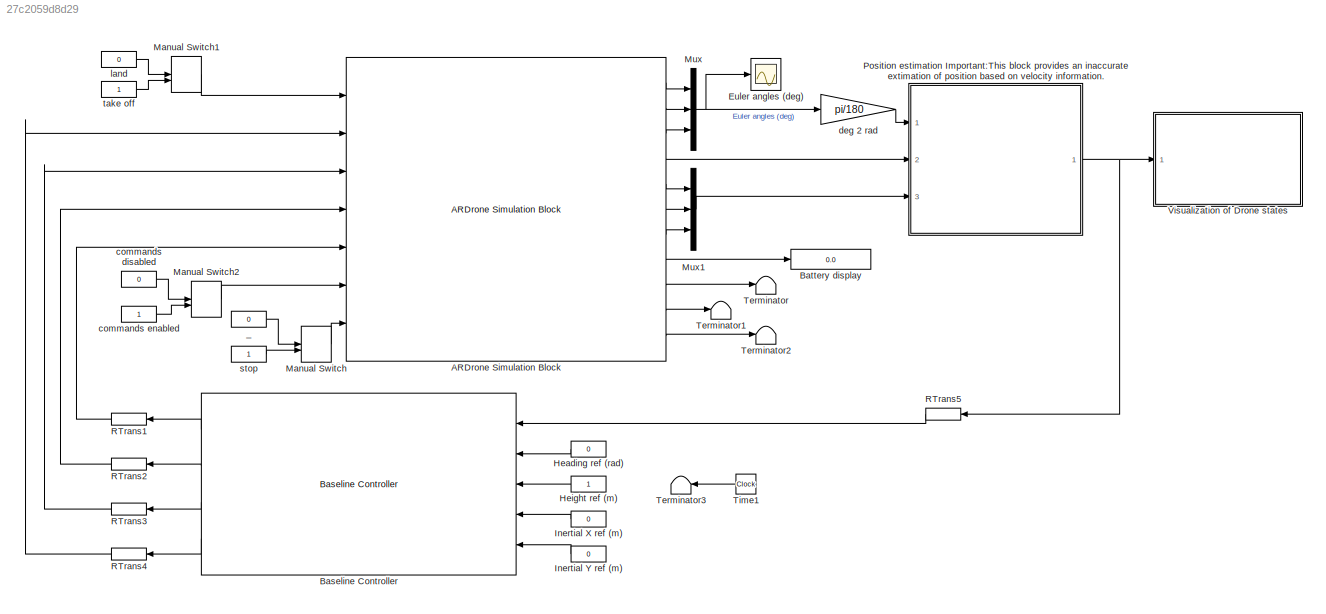
MODEL slx_27c2059d8d29
KIND model
CONFIG AbsTol = auto
CONFIG EnableMultiTasking = on
CONFIG FixedStep = simDT
CONFIG MaxStep = auto
CONFIG MinStep = auto
CONFIG RelTol = 1e-3
CONFIG SampleTimeConstraint = Unconstrained
CONFIG Solver = ode1
CONFIG SolverName = ode1
CONFIG StartTime = 0.0
CONFIG StopTime = 100
BLOCK [Reference] ARDrone Simulation Block  REF=ARBlocks/ARDrone Simulation Block
  Ports = [7, 11]
  SourceBlock = ARBlocks/ARDrone Simulation Block
  SourceType = SubSystem
BLOCK [Reference] Baseline Controller  REF=ARBlocks/Baseline Controller
  Ports = [5, 4]
  SourceBlock = ARBlocks/Baseline Controller
  SourceType = SubSystem
BLOCK [Display] Battery display
  Decimation = 1
  Ports = [1]
BLOCK [Scope] Euler angles (deg)
  Floating = off
  NumInputPorts = 1
  Ports = [1]
  ScopeSpecificationString = Simulink.scopes.TimeScopeBlockCfg('CurrentConfiguration', extmgr.ConfigurationSet(extmgr.Configuration('Core','General UI',true),extmgr.Configuration('Core','Source UI',true),extmgr.Configuration('Sources','WiredSimulink',true,'DataLoggingSaveFormat','StructureWithTime','DataLoggingMaxPoints','500000','DataLoggingLimitDataPoints',true,'DataLoggingDecimation','1','DataLoggingDecimateData',true),ext...<+1675ch>
BLOCK [Constant] Heading ref (rad)
  NameLocation = top
  SampleTime = FMS.Ts
  Value = 0
BLOCK [Constant] Height ref (m)
  NameLocation = top
  SampleTime = FMS.Ts
BLOCK [Constant] Inertial X ref (m)
  NameLocation = top
  SampleTime = FMS.Ts
  Value = 0
BLOCK [Constant] Inertial Y ref (m)
  NameLocation = top
  SampleTime = FMS.Ts
  Value = 0
BLOCK [ManualSwitch] Manual Switch
BLOCK [ManualSwitch] Manual Switch1
BLOCK [ManualSwitch] Manual Switch2
  NameLocation = top
BLOCK [Mux] Mux
  DisplayOption = bar
  Inputs = 3
  Ports = [3, 1]
BLOCK [Mux] Mux1
  DisplayOption = bar
  Inputs = 3
  Ports = [3, 1]
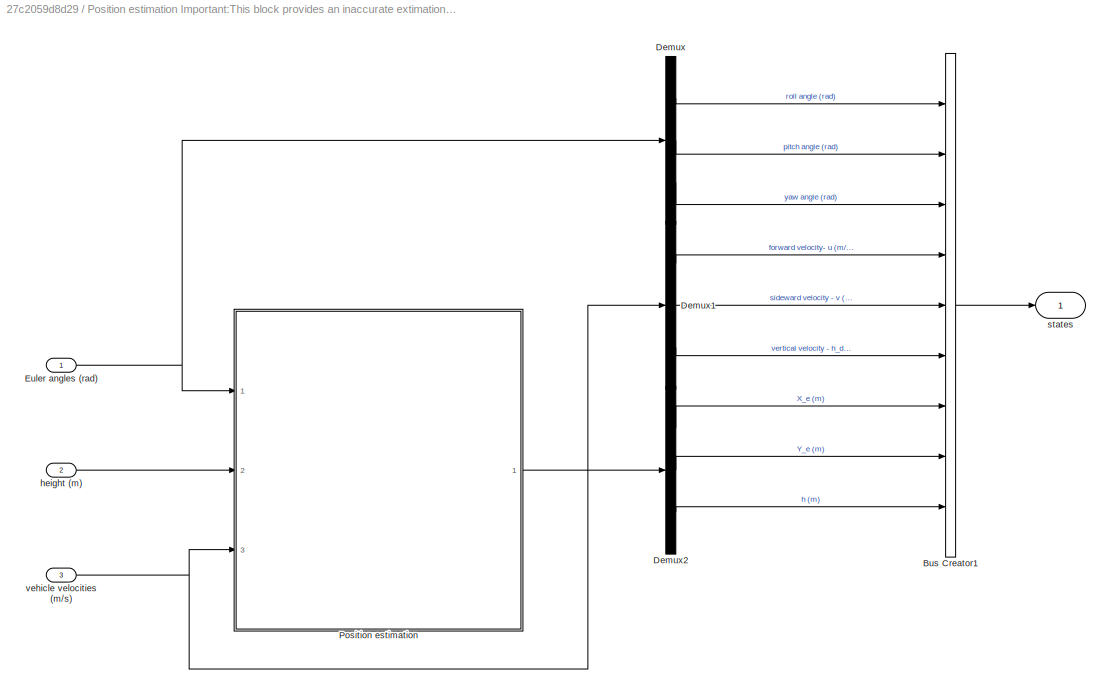
BLOCK [SubSystem] Position estimation Important:This block provides an inaccurate extimation of position based on  velocity information. 
  AncestorBlock = ARBlocks/Position estimation\nImportant:This block provides an \ninaccurate extimation of position \nbased on  velocity information.
  Ports = [3, 1]
  RequestExecContextInheritance = off
BLOCK [BusCreator] Position estimation Important:This block provides an inaccurate extimation of position based on  velocity information. /Bus Creator1
  DisplayOption = bar
  InheritFromInputs = on
  Inputs = 9
  Ports = [9, 1]
BLOCK [Demux] Position estimation Important:This block provides an inaccurate extimation of position based on  velocity information. /Demux
  Outputs = 3
  Ports = [1, 3]
BLOCK [Demux] Position estimation Important:This block provides an inaccurate extimation of position based on  velocity information. /Demux1
  Outputs = 3
  Ports = [1, 3]
BLOCK [Demux] Position estimation Important:This block provides an inaccurate extimation of position based on  velocity information. /Demux2
  Outputs = 3
  Ports = [1, 3]
BLOCK [Inport] Position estimation Important:This block provides an inaccurate extimation of position based on  velocity information. /Euler angles (rad)
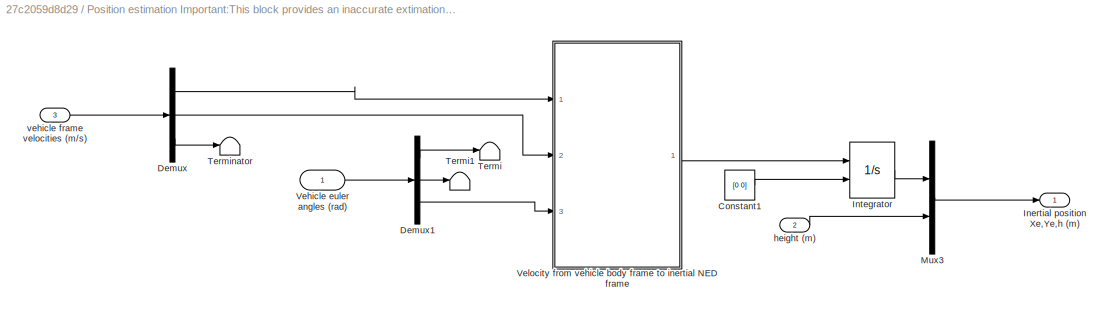
BLOCK [SubSystem] Position estimation Important:This block provides an inaccurate extimation of position based on  velocity information. /Position estimation
  Ports = [3, 1]
  RequestExecContextInheritance = off
BLOCK [Constant] Position estimation Important:This block provides an inaccurate extimation of position based on  velocity information. /Position estimation/Constant1
  Value = [0 0]
BLOCK [Demux] Position estimation Important:This block provides an inaccurate extimation of position based on  velocity information. /Position estimation/Demux
  Outputs = 3
  Ports = [1, 3]
BLOCK [Demux] Position estimation Important:This block provides an inaccurate extimation of position based on  velocity information. /Position estimation/Demux1
  Outputs = 3
  Ports = [1, 3]
BLOCK [Outport] Position estimation Important:This block provides an inaccurate extimation of position based on  velocity information. /Position estimation/Inertial position Xe,Ye,h (m)
  VectorParamsAs1DForOutWhenUnconnected = off
BLOCK [Integrator] Position estimation Important:This block provides an inaccurate extimation of position based on  velocity information. /Position estimation/Integrator
  InitialConditionSource = external
  Ports = [2, 1]
BLOCK [Mux] Position estimation Important:This block provides an inaccurate extimation of position based on  velocity information. /Position estimation/Mux3
  DisplayOption = bar
  Inputs = 2
  Ports = [2, 1]
BLOCK [Terminator] Position estimation Important:This block provides an inaccurate extimation of position based on  velocity information. /Position estimation/Termi
BLOCK [Terminator] Position estimation Important:This block provides an inaccurate extimation of position based on  velocity information. /Position estimation/Termi1
BLOCK [Terminator] Position estimation Important:This block provides an inaccurate extimation of position based on  velocity information. /Position estimation/Terminator
BLOCK [Inport] Position estimation Important:This block provides an inaccurate extimation of position based on  velocity information. /Position estimation/Vehicle euler angles (rad)
  NameLocation = top
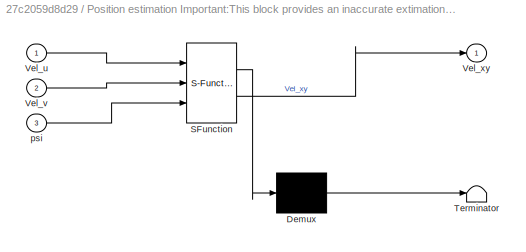
BLOCK [SubSystem] Position estimation Important:This block provides an inaccurate extimation of position based on  velocity information. /Position estimation/Velocity from vehicle body frame to inertial NED  frame
  ErrorFcn = Stateflow.Translate.translate
  PermitHierarchicalResolution = ExplicitOnly
  Ports = [3, 1]
  RequestExecContextInheritance = off
  SFBlockType = MATLAB Function
  TreatAsAtomicUnit = on
BLOCK [Demux] Position estimation Important:This block provides an inaccurate extimation of position based on  velocity information. /Position estimation/Velocity from vehicle body frame to inertial NED  frame/ Demux 
  Outputs = 1
  Ports = [1, 1]
BLOCK [S-Function] Position estimation Important:This block provides an inaccurate extimation of position based on  velocity information. /Position estimation/Velocity from vehicle body frame to inertial NED  frame/ SFunction 
  EnableBusSupport = off
  FunctionName = sf_sfun
  PortCounts = [3 2]
  Ports = [3, 2]
  SFcnIsStateOwnerBlock = off
  SFunctionDeploymentMode = off
  Tag = Stateflow S-Function 6
BLOCK [Terminator] Position estimation Important:This block provides an inaccurate extimation of position based on  velocity information. /Position estimation/Velocity from vehicle body frame to inertial NED  frame/ Terminator 
BLOCK [Inport] Position estimation Important:This block provides an inaccurate extimation of position based on  velocity information. /Position estimation/Velocity from vehicle body frame to inertial NED  frame/Vel_u
BLOCK [Inport] Position estimation Important:This block provides an inaccurate extimation of position based on  velocity information. /Position estimation/Velocity from vehicle body frame to inertial NED  frame/Vel_v
  Port = 2
BLOCK [Outport] Position estimation Important:This block provides an inaccurate extimation of position based on  velocity information. /Position estimation/Velocity from vehicle body frame to inertial NED  frame/Vel_xy
  VectorParamsAs1DForOutWhenUnconnected = off
BLOCK [Inport] Position estimation Important:This block provides an inaccurate extimation of position based on  velocity information. /Position estimation/Velocity from vehicle body frame to inertial NED  frame/psi
  Port = 3
BLOCK [Inport] Position estimation Important:This block provides an inaccurate extimation of position based on  velocity information. /Position estimation/height (m)
  Port = 2
BLOCK [Inport] Position estimation Important:This block provides an inaccurate extimation of position based on  velocity information. /Position estimation/vehicle frame velocities (m//s)
  Port = 3
BLOCK [Inport] Position estimation Important:This block provides an inaccurate extimation of position based on  velocity information. /height (m)
  Port = 2
BLOCK [Outport] Position estimation Important:This block provides an inaccurate extimation of position based on  velocity information. /states
  NameLocation = top
  VectorParamsAs1DForOutWhenUnconnected = off
BLOCK [Inport] Position estimation Important:This block provides an inaccurate extimation of position based on  velocity information. /vehicle velocities (m//s)
  Port = 3
BLOCK [RateTransition] RTrans1
  NameLocation = top
  OutPortSampleTime = simDT
BLOCK [RateTransition] RTrans2
  NameLocation = top
  OutPortSampleTime = simDT
BLOCK [RateTransition] RTrans3
  NameLocation = top
  OutPortSampleTime = simDT
BLOCK [RateTransition] RTrans4
  NameLocation = top
  OutPortSampleTime = simDT
BLOCK [RateTransition] RTrans5
  NameLocation = top
  OutPortSampleTime = FMS.Ts
BLOCK [Terminator] Terminator
BLOCK [Terminator] Terminator1
BLOCK [Terminator] Terminator2
BLOCK [Terminator] Terminator3
  NameLocation = top
BLOCK [Clock] Time1
  NameLocation = top
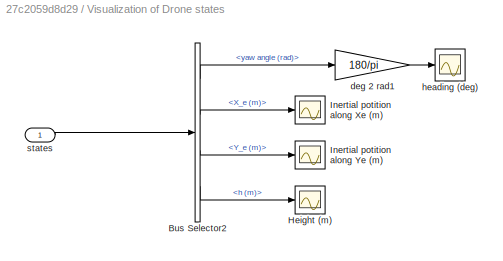
BLOCK [SubSystem] Visualization of Drone states
  Ports = [1]
  RequestExecContextInheritance = off
BLOCK [BusSelector] Visualization of Drone states/Bus Selector2
  NameLocation = top
  OutputSignals = yaw angle (rad),X_e (m),Y_e (m),h (m)
  Ports = [1, 4]
BLOCK [Scope] Visualization of Drone states/Height (m)
  Floating = off
  NumInputPorts = 1
  Ports = [1]
  ScopeSpecificationString = Simulink.scopes.TimeScopeBlockCfg('CurrentConfiguration', extmgr.ConfigurationSet(extmgr.Configuration('Core','General UI',true),extmgr.Configuration('Core','Source UI',true),extmgr.Configuration('Sources','WiredSimulink',true,'DataLoggingVariableName','ScopeData5','DataLoggingSaveFormat','StructureWithTime','DataLoggingMaxPoints','500000','DataLoggingLimitDataPoints',true,'DataLoggingDecimation',...<+1715ch>
BLOCK [Scope] Visualization of Drone states/Inertial potition along Xe (m)
  Floating = off
  NumInputPorts = 1
  Ports = [1]
  ScopeSpecificationString = Simulink.scopes.TimeScopeBlockCfg('CurrentConfiguration', extmgr.ConfigurationSet(extmgr.Configuration('Core','General UI',true),extmgr.Configuration('Core','Source UI',true),extmgr.Configuration('Sources','WiredSimulink',true,'DataLoggingVariableName','ScopeData3','DataLoggingSaveFormat','StructureWithTime','DataLoggingMaxPoints','500000','DataLoggingLimitDataPoints',true,'DataLoggingDecimation',...<+1715ch>
BLOCK [Scope] Visualization of Drone states/Inertial potition along Ye (m)
  Floating = off
  NumInputPorts = 1
  Ports = [1]
  ScopeSpecificationString = Simulink.scopes.TimeScopeBlockCfg('CurrentConfiguration', extmgr.ConfigurationSet(extmgr.Configuration('Core','General UI',true),extmgr.Configuration('Core','Source UI',true),extmgr.Configuration('Sources','WiredSimulink',true,'DataLoggingVariableName','ScopeData4','DataLoggingSaveFormat','StructureWithTime','DataLoggingMaxPoints','500000','DataLoggingLimitDataPoints',true,'DataLoggingDecimation',...<+1716ch>
BLOCK [Gain] Visualization of Drone states/deg 2 rad1
  Gain = 180/pi
BLOCK [Scope] Visualization of Drone states/heading (deg)
  Floating = off
  NumInputPorts = 1
  Ports = [1]
  ScopeSpecificationString = C++SS(StrPVP('Location','[5, 48, 1371, 727]'),StrPVP('Open','off'),MxPVP('AxesTitles',54,'struct(''axes1'',''%<SignalLabel>'')'),MxPVP('ScopeGraphics',57,'struct(''FigureColor'',''[0.5 0.5 0.5]'',''AxesColor'',''[0 0 0]'',''AxesTickColor'',''[1 1 1]'',''LineColors'',''[1 1 0;1 0 1;0 1 1;1 0 0;0 1 0;0 0 1]'',''LineStyles'',''-|-|-|-|-|-'',''LineWidths'',''[0.5 0.5 0.5 0.5 0.5 0.5]'',''MarkerStyles'...<+347ch>
BLOCK [Inport] Visualization of Drone states/states
BLOCK [Constant] _
  Value = 0
BLOCK [Constant] commands disabled
  Value = 0
BLOCK [Constant] commands enabled
BLOCK [Gain] deg 2 rad
  Gain = pi/180
BLOCK [Constant] land
  Value = 0
BLOCK [Constant] stop
BLOCK [Constant] take off
LINE ARDrone Simulation Block:1 -> Mux:1
LINE ARDrone Simulation Block:10 -> Terminator1:1
LINE ARDrone Simulation Block:11 -> Terminator2:1
LINE ARDrone Simulation Block:2 -> Mux:2
LINE ARDrone Simulation Block:3 -> Mux:3
LINE ARDrone Simulation Block:4 -> Position estimation Important:This block provides an inaccurate extimation of position based on  velocity information. :2
LINE ARDrone Simulation Block:5 -> Mux1:1
LINE ARDrone Simulation Block:6 -> Mux1:2
LINE ARDrone Simulation Block:7 -> Mux1:3
LINE ARDrone Simulation Block:8 -> Battery display:1
LINE ARDrone Simulation Block:9 -> Terminator:1
LINE Baseline Controller:1 -> RTrans1:1
LINE Baseline Controller:2 -> RTrans2:1
LINE Baseline Controller:3 -> RTrans3:1
LINE Baseline Controller:4 -> RTrans4:1
LINE Heading ref (rad):1 -> Baseline Controller:2
LINE Height ref (m):1 -> Baseline Controller:3
LINE Inertial X ref (m):1 -> Baseline Controller:4
LINE Inertial Y ref (m):1 -> Baseline Controller:5
LINE Manual Switch1:1 -> ARDrone Simulation Block:1
LINE Manual Switch2:1 -> ARDrone Simulation Block:6
LINE Manual Switch:1 -> ARDrone Simulation Block:7
LINE Mux1:1 -> Position estimation Important:This block provides an inaccurate extimation of position based on  velocity information. :3
NET Mux:1 -> Euler angles (deg):1, deg 2 rad:1
NET Position estimation Important:This block provides an inaccurate extimation of position based on  velocity information. :1 -> RTrans5:1, Visualization of Drone states:1
LINE RTrans1:1 -> ARDrone Simulation Block:5
LINE RTrans2:1 -> ARDrone Simulation Block:4
LINE RTrans3:1 -> ARDrone Simulation Block:3
LINE RTrans4:1 -> ARDrone Simulation Block:2
LINE RTrans5:1 -> Baseline Controller:1
LINE Time1:1 -> Terminator3:1
LINE Visualization of Drone states/Bus Selector2:1 -> Visualization of Drone states/deg 2 rad1:1
LINE Visualization of Drone states/Bus Selector2:2 -> Visualization of Drone states/Inertial potition along Xe (m):1
LINE Visualization of Drone states/Bus Selector2:3 -> Visualization of Drone states/Inertial potition along Ye (m):1
LINE Visualization of Drone states/Bus Selector2:4 -> Visualization of Drone states/Height (m):1
LINE Visualization of Drone states/deg 2 rad1:1 -> Visualization of Drone states/heading (deg):1
LINE Visualization of Drone states/states:1 -> Visualization of Drone states/Bus Selector2:1
LINE _:1 -> Manual Switch:1
LINE commands disabled:1 -> Manual Switch2:1
LINE commands enabled:1 -> Manual Switch2:2
LINE deg 2 rad:1 -> Position estimation Important:This block provides an inaccurate extimation of position based on  velocity information. :1
LINE land:1 -> Manual Switch1:1
LINE stop:1 -> Manual Switch:2
LINE take off:1 -> Manual Switch1:2
note: NET lines group one-source signal fan-out (src -> all destinations, sorted); 1:1 wires keep LINE
CHART Position estimation
Important:This block provides an 
inaccurate extimation of position 
based on  velocity information. /Position estimation/Velocity from vehicle body frame
 to inertial NED  frame states=1 transitions=1
  STATE_LABEL 'eML_blk_kernel()'
  STATE_LABEL 'SCRIPT:\nfunction Vel_xy = fcn(Vel_u, Vel_v, psi)\n%#codegen\nT = [cos(psi) -sin(psi) ; sin(psi) cos(psi)] ; \nVel_xy = T*[Vel_u; Vel_v]; '
CHART  states=0 transitions=0
